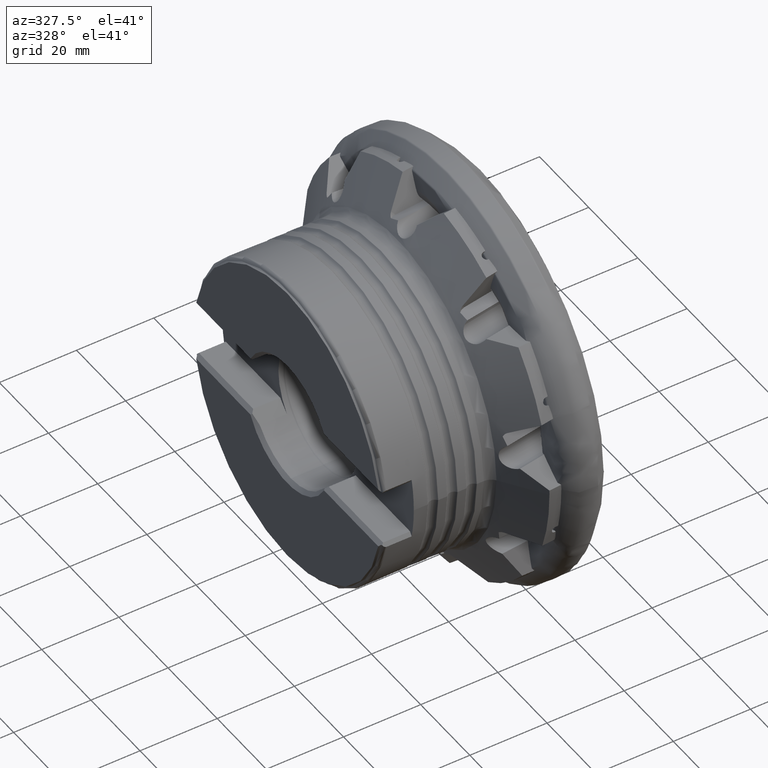
[diagram: clean part render]
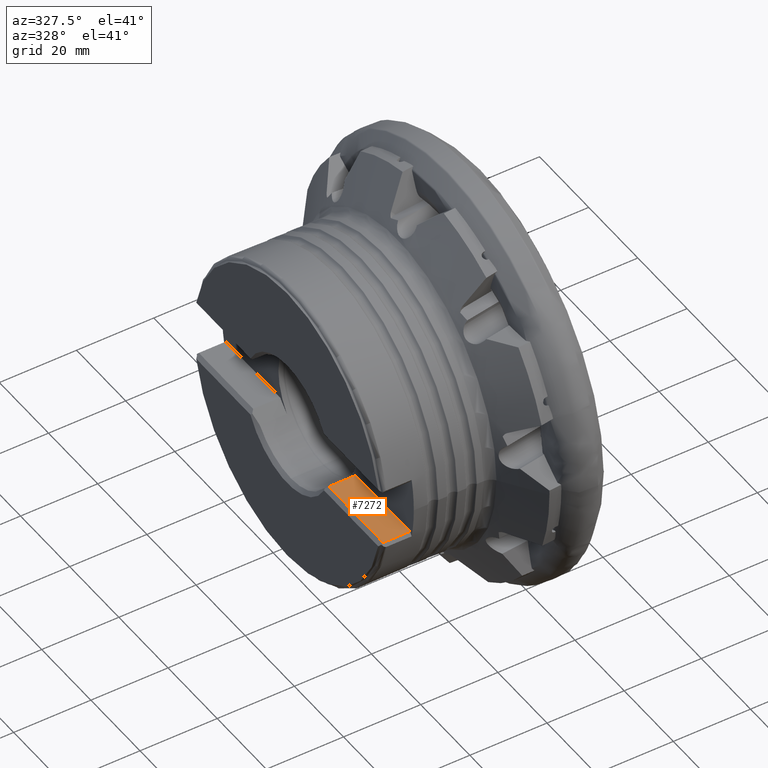
[diagram: same view with one face highlighted and labeled with its STEP entity id]
A machine part, auxiliary view. The second image highlights one B-rep face of the part: STEP entity #7272.
In plain terms, the highlighted planar face has unit normal (0, 0, -1).
Its self-contained STEP definition (entity closure, byte-faithful):
#799 = VERTEX_POINT ( 'NONE', #8358 ) ;
#1069 = ORIENTED_EDGE ( 'NONE', *, *, #8146, .F. ) ;
#1316 = VECTOR ( 'NONE', #16131, 1000.000000000000000 ) ;
#1839 = EDGE_CURVE ( 'NONE', #799, #4114, #5505, .T. ) ;
#1840 = DIRECTION ( 'NONE',  ( -1.000000000000000000, 1.948386961570707700E-016, -2.478176394252579700E-016 ) ) ;
#2784 = PLANE ( 'NONE',  #6284 ) ;
#3473 = FACE_OUTER_BOUND ( 'NONE', #7334, .T. ) ;
#4114 = VERTEX_POINT ( 'NONE', #15829 ) ;
#4393 = VERTEX_POINT ( 'NONE', #12590 ) ;
#5091 = CARTESIAN_POINT ( 'NONE',  ( -48.14999999999999900, -54.99999999999999300, -7.199999999999994800 ) ) ;
#5505 = LINE ( 'NONE', #11524, #12682 ) ;
#5548 = DIRECTION ( 'NONE',  ( 2.478176394252579700E-016, 0.0000000000000000000, -1.000000000000000000 ) ) ;
#5982 = EDGE_CURVE ( 'NONE', #10021, #4393, #17079, .T. ) ;
#6228 = LINE ( 'NONE', #5091, #6632 ) ;
#6284 = AXIS2_PLACEMENT_3D ( 'NONE', #9546, #5548, #14997 ) ;
#6327 = DIRECTION ( 'NONE',  ( -0.0000000000000000000, 1.000000000000000000, -0.0000000000000000000 ) ) ;
#6632 = VECTOR ( 'NONE', #6327, 1000.000000000000000 ) ;
#6665 = CARTESIAN_POINT ( 'NONE',  ( -41.14999999999999100, -54.99999999999999300, -7.199999999999993100 ) ) ;
#7272 = ADVANCED_FACE ( 'NONE', ( #3473 ), #2784, .F. ) ;
#7334 = EDGE_LOOP ( 'NONE', ( #9048, #8886, #1069, #8055 ) ) ;
#8055 = ORIENTED_EDGE ( 'NONE', *, *, #1839, .T. ) ;
#8146 = EDGE_CURVE ( 'NONE', #799, #4393, #6228, .T. ) ;
#8358 = CARTESIAN_POINT ( 'NONE',  ( -48.14999999999999900, -37.47303783587900500, -7.199999999999994000 ) ) ;
#8886 = ORIENTED_EDGE ( 'NONE', *, *, #5982, .T. ) ;
#9048 = ORIENTED_EDGE ( 'NONE', *, *, #13648, .T. ) ;
#9229 = CARTESIAN_POINT ( 'NONE',  ( -41.14999999999999100, -15.37239106759899500, -7.199999999999993100 ) ) ;
#9546 = CARTESIAN_POINT ( 'NONE',  ( -48.14999999999999900, -54.99999999999999300, -7.199999999999994800 ) ) ;
#10004 = CARTESIAN_POINT ( 'NONE',  ( -48.14999999999999100, -15.37239106759899500, -7.199999999999994800 ) ) ;
#10021 = VERTEX_POINT ( 'NONE', #9229 ) ;
#11524 = CARTESIAN_POINT ( 'NONE',  ( -41.14999999999999100, -37.47303783587900500, -7.199999999999993100 ) ) ;
#12590 = CARTESIAN_POINT ( 'NONE',  ( -48.14999999999999900, -15.37239106759898500, -7.199999999999997500 ) ) ;
#12682 = VECTOR ( 'NONE', #12695, 1000.000000000000000 ) ;
#12695 = DIRECTION ( 'NONE',  ( 1.000000000000000000, 1.288753910992241500E-016, 2.478176394252579700E-016 ) ) ;
#13648 = EDGE_CURVE ( 'NONE', #4114, #10021, #15391, .T. ) ;
#14997 = DIRECTION ( 'NONE',  ( -1.000000000000000000, 0.0000000000000000000, -2.478176394252579700E-016 ) ) ;
#15391 = LINE ( 'NONE', #6665, #1316 ) ;
#15829 = CARTESIAN_POINT ( 'NONE',  ( -41.14999999999999100, -37.47303783587900500, -7.199999999999993100 ) ) ;
#16131 = DIRECTION ( 'NONE',  ( -0.0000000000000000000, 1.000000000000000000, -0.0000000000000000000 ) ) ;
#16651 = VECTOR ( 'NONE', #1840, 1000.000000000000000 ) ;
#17079 = LINE ( 'NONE', #10004, #16651 ) ;